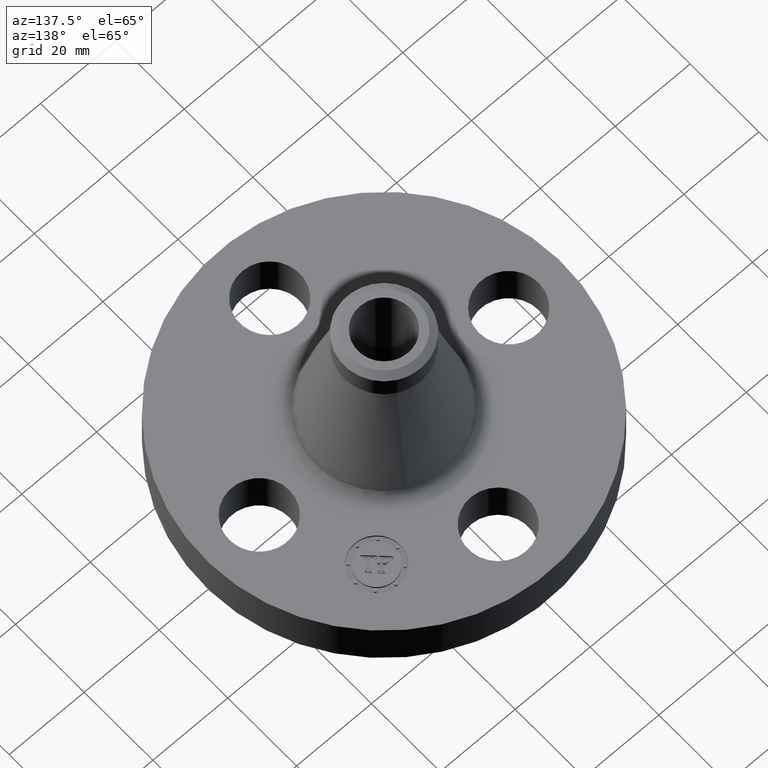
[diagram: clean part render]
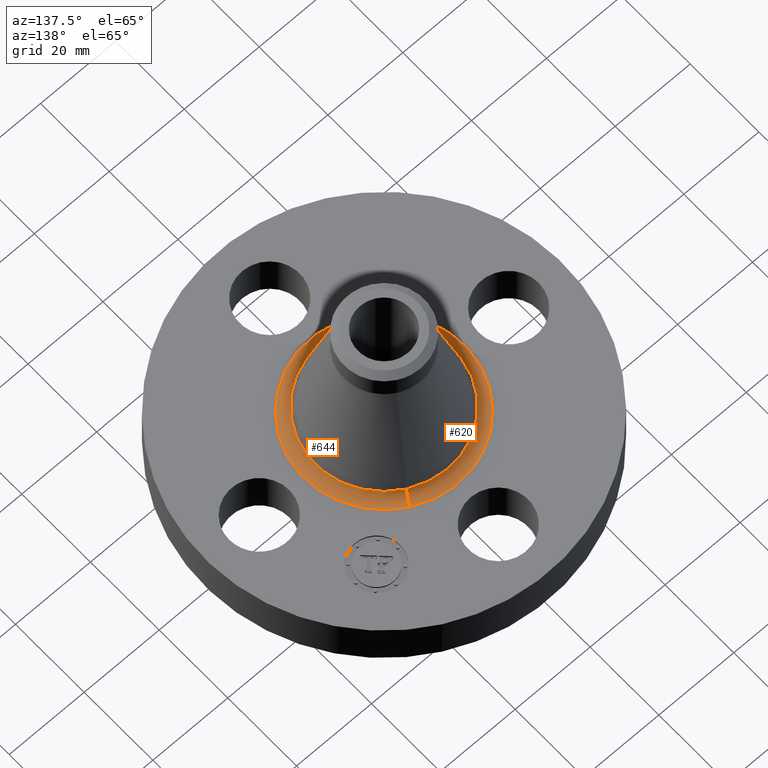
[diagram: same view with one multi-face feature highlighted, each face labeled with its STEP entity id]
A machine part, auxiliary view. The highlighted faces form ONE feature: a constant-radius fillet chain: 2 tangent blend faces with common blend radius 3.048 mm. The faces share edges in the B-rep.
Their STEP definitions:
[1] entity #620 (Torus):
#272=AXIS2_PLACEMENT_3D('Circle Axis2P3D',#270,#271,$) ;
#593=AXIS2_PLACEMENT_3D('Torus Axis2P3D',#590,#591,#592) ;
#597=AXIS2_PLACEMENT_3D('Circle Axis2P3D',#595,#596,$) ;
#604=AXIS2_PLACEMENT_3D('Circle Axis2P3D',#602,#603,$) ;
#611=AXIS2_PLACEMENT_3D('Circle Axis2P3D',#609,#610,$) ;
#270=CARTESIAN_POINT('Axis2P3D Location',(-1.39870617276E-016,1.00001896527E-011,0.500000000002)) ;
#274=CARTESIAN_POINT('Vertex',(-0.403524524561,-0.738646687619,0.500000000002)) ;
#276=CARTESIAN_POINT('Vertex',(0.403524524561,0.738646687619,0.500000000002)) ;
#590=CARTESIAN_POINT('Axis2P3D Location',(0.,0.,0.620000000002)) ;
#595=CARTESIAN_POINT('Axis2P3D Location',(-0.403524524561,-0.738646687619,0.620000000002)) ;
#599=CARTESIAN_POINT('Vertex',(-0.348016189981,-0.637039362717,0.5884599252)) ;
#602=CARTESIAN_POINT('Axis2P3D Location',(0.,0.,0.5884599252)) ;
#606=CARTESIAN_POINT('Vertex',(0.348016189981,0.637039362717,0.5884599252)) ;
#609=CARTESIAN_POINT('Axis2P3D Location',(0.403524524561,0.738646687619,0.620000000002)) ;
#271=DIRECTION('Axis2P3D Direction',(0.,0.,-0.0393700787402)) ;
#591=DIRECTION('Axis2P3D Direction',(0.,0.,-0.0393700787402)) ;
#592=DIRECTION('Axis2P3D XDirection',(-0.0188750212049,-0.0345504945626,0.)) ;
#596=DIRECTION('Axis2P3D Direction',(0.0345504945626,-0.0188750212049,0.)) ;
#603=DIRECTION('Axis2P3D Direction',(-0.,0.,-0.0393700787402)) ;
#610=DIRECTION('Axis2P3D Direction',(-0.0345504945626,0.0188750212049,0.)) ;
#615=ORIENTED_EDGE('',*,*,#278,.F.) ;
#616=ORIENTED_EDGE('',*,*,#601,.T.) ;
#617=ORIENTED_EDGE('',*,*,#608,.T.) ;
#618=ORIENTED_EDGE('',*,*,#613,.F.) ;
#620=ADVANCED_FACE('PartBody',(#619),#594,.F.) ;
#273=CIRCLE('generated circle',#272,0.841683414989) ;
#598=CIRCLE('generated circle',#597,0.12) ;
#605=CIRCLE('generated circle',#604,0.725902485283) ;
#612=CIRCLE('generated circle',#611,0.12) ;
#594=TOROIDAL_SURFACE('homeo Torus',#593,0.84168341498,0.12) ;
#278=EDGE_CURVE('',#275,#277,#273,.T.) ;
#601=EDGE_CURVE('',#275,#600,#598,.T.) ;
#608=EDGE_CURVE('',#600,#607,#605,.T.) ;
#613=EDGE_CURVE('',#277,#607,#612,.T.) ;
#614=EDGE_LOOP('',(#615,#616,#617,#618)) ;
#619=FACE_OUTER_BOUND('',#614,.T.) ;
#275=VERTEX_POINT('',#274) ;
#277=VERTEX_POINT('',#276) ;
#600=VERTEX_POINT('',#599) ;
#607=VERTEX_POINT('',#606) ;
[2] entity #644 (Torus):
#281=AXIS2_PLACEMENT_3D('Circle Axis2P3D',#279,#280,$) ;
#597=AXIS2_PLACEMENT_3D('Circle Axis2P3D',#595,#596,$) ;
#611=AXIS2_PLACEMENT_3D('Circle Axis2P3D',#609,#610,$) ;
#631=AXIS2_PLACEMENT_3D('Torus Axis2P3D',#628,#629,#630) ;
#635=AXIS2_PLACEMENT_3D('Circle Axis2P3D',#633,#634,$) ;
#274=CARTESIAN_POINT('Vertex',(-0.403524524561,-0.738646687619,0.500000000002)) ;
#276=CARTESIAN_POINT('Vertex',(0.403524524561,0.738646687619,0.500000000002)) ;
#279=CARTESIAN_POINT('Axis2P3D Location',(1.39870617276E-016,1.00001896527E-011,0.500000000002)) ;
#595=CARTESIAN_POINT('Axis2P3D Location',(-0.403524524561,-0.738646687619,0.620000000002)) ;
#599=CARTESIAN_POINT('Vertex',(-0.348016189981,-0.637039362717,0.5884599252)) ;
#606=CARTESIAN_POINT('Vertex',(0.348016189981,0.637039362717,0.5884599252)) ;
#609=CARTESIAN_POINT('Axis2P3D Location',(0.403524524561,0.738646687619,0.620000000002)) ;
#628=CARTESIAN_POINT('Axis2P3D Location',(0.,0.,0.620000000002)) ;
#633=CARTESIAN_POINT('Axis2P3D Location',(0.,0.,0.5884599252)) ;
#280=DIRECTION('Axis2P3D Direction',(0.,0.,-0.0393700787402)) ;
#596=DIRECTION('Axis2P3D Direction',(0.0345504945626,-0.0188750212049,0.)) ;
#610=DIRECTION('Axis2P3D Direction',(-0.0345504945626,0.0188750212049,0.)) ;
#629=DIRECTION('Axis2P3D Direction',(0.,0.,-0.0393700787402)) ;
#630=DIRECTION('Axis2P3D XDirection',(0.0188750212049,0.0345504945626,0.)) ;
#634=DIRECTION('Axis2P3D Direction',(-0.,0.,-0.0393700787402)) ;
#639=ORIENTED_EDGE('',*,*,#283,.F.) ;
#640=ORIENTED_EDGE('',*,*,#613,.T.) ;
#641=ORIENTED_EDGE('',*,*,#637,.T.) ;
#642=ORIENTED_EDGE('',*,*,#601,.F.) ;
#644=ADVANCED_FACE('PartBody',(#643),#632,.F.) ;
#282=CIRCLE('generated circle',#281,0.841683414989) ;
#598=CIRCLE('generated circle',#597,0.12) ;
#612=CIRCLE('generated circle',#611,0.12) ;
#636=CIRCLE('generated circle',#635,0.725902485283) ;
#632=TOROIDAL_SURFACE('homeo Torus',#631,0.84168341498,0.12) ;
#283=EDGE_CURVE('',#277,#275,#282,.T.) ;
#601=EDGE_CURVE('',#275,#600,#598,.T.) ;
#613=EDGE_CURVE('',#277,#607,#612,.T.) ;
#637=EDGE_CURVE('',#607,#600,#636,.T.) ;
#638=EDGE_LOOP('',(#639,#640,#641,#642)) ;
#643=FACE_OUTER_BOUND('',#638,.T.) ;
#275=VERTEX_POINT('',#274) ;
#277=VERTEX_POINT('',#276) ;
#600=VERTEX_POINT('',#599) ;
#607=VERTEX_POINT('',#606) ;